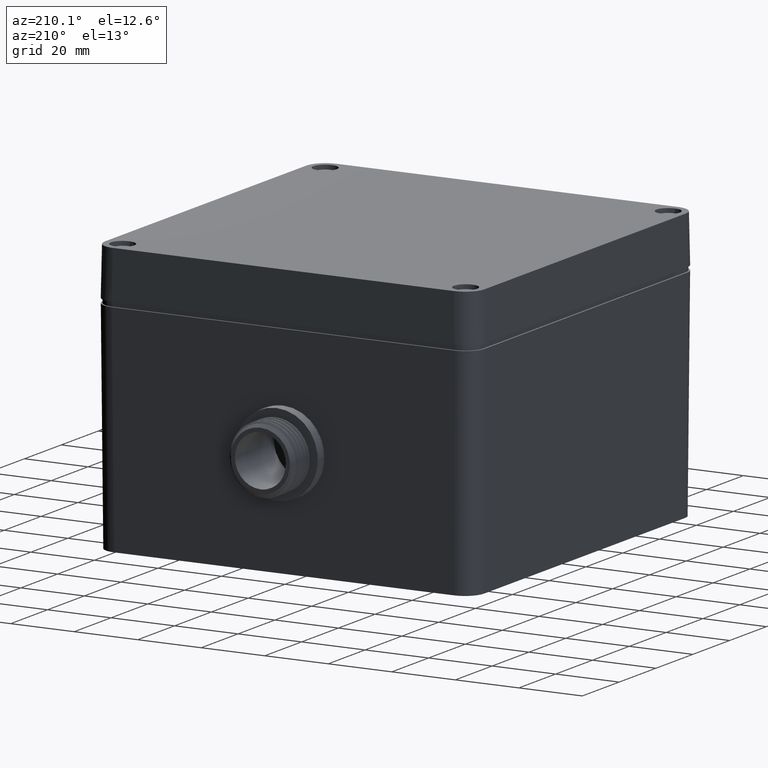
[diagram: clean part render]
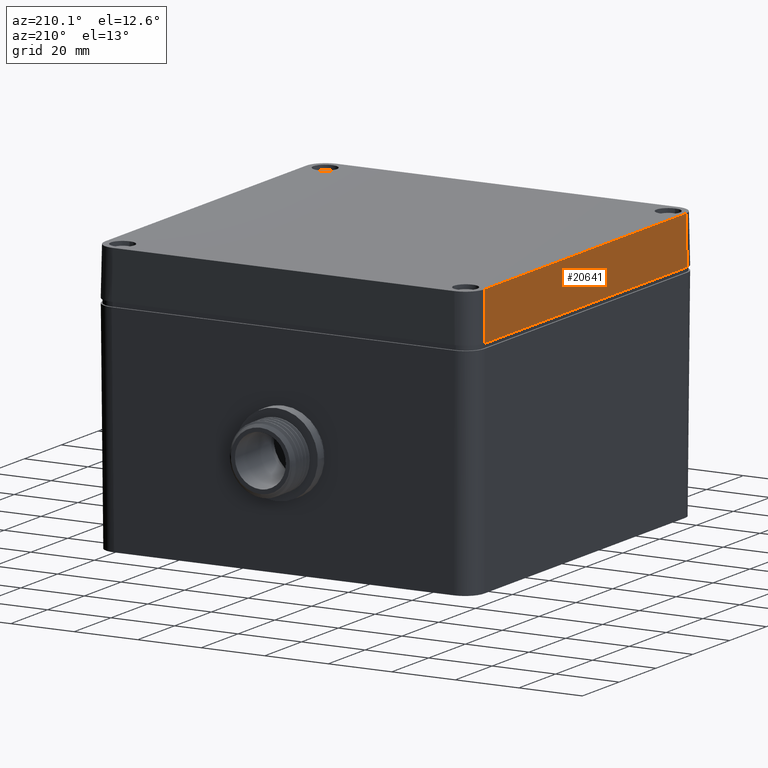
[diagram: same view with one face highlighted and labeled with its STEP entity id]
A machine part, auxiliary view. The second image highlights one B-rep face of the part: STEP entity #20641.
In plain terms, the highlighted planar face has unit normal (-0.9998, 0, 0.0175).
Its self-contained STEP definition (entity closure, byte-faithful):
#223 = VECTOR ( 'NONE', #27407, 39.37007874015748143 ) ;
#375 = CARTESIAN_POINT ( 'NONE',  ( -2.352334638820735346, -2.156097020969982125, 0.5654185664068596129 ) ) ;
#391 = VERTEX_POINT ( 'NONE', #5667 ) ;
#551 = CARTESIAN_POINT ( 'NONE',  ( -2.354542528761458975, -2.157758673636085867, 0.4389667814624469422 ) ) ;
#903 = CARTESIAN_POINT ( 'NONE',  ( -2.352097316377097957, -2.156095025214286309, 0.5789782579452352751 ) ) ;
#1169 = CARTESIAN_POINT ( 'NONE',  ( -2.363235535990704683, -2.598468369876929085, -0.05905515593579724332 ) ) ;
#1172 = VECTOR ( 'NONE', #16758, 39.37007874015748143 ) ;
#1249 = CARTESIAN_POINT ( 'NONE',  ( -2.355649036950147046, -2.158873690254081268, 0.3755748979688536271 ) ) ;
#1390 = CARTESIAN_POINT ( 'NONE',  ( -2.354409011538062924, 2.157585152085956803, 0.4466160819360338596 ) ) ;
#1523 = CARTESIAN_POINT ( 'NONE',  ( -2.357759378019586904, 2.160948580462492163, 0.2546737241136102226 ) ) ;
#1561 = CARTESIAN_POINT ( 'NONE',  ( -2.354442560287043573, 2.157623346525472385, 0.4446940823443842339 ) ) ;
#1866 = CARTESIAN_POINT ( 'NONE',  ( -2.357675594543094721, 2.160866185557570596, 0.2594736736497622043 ) ) ;
#2073 = CARTESIAN_POINT ( 'NONE',  ( -2.354476435663775735, 2.157662213539567109, 0.4427533657138661427 ) ) ;
#2293 = VERTEX_POINT ( 'NONE', #24289 ) ;
#2705 = LINE ( 'NONE', #7789, #3605 ) ;
#3185 = CARTESIAN_POINT ( 'NONE',  ( -2.354263016434294364, -2.157464476320853475, 0.4549801176525264945 ) ) ;
#3362 = CARTESIAN_POINT ( 'NONE',  ( -2.355251278065625176, -2.158480694836822256, 0.3983624414064599328 ) ) ;
#3427 = ORIENTED_EDGE ( 'NONE', *, *, #26568, .F. ) ;
#3450 = DIRECTION ( 'NONE',  ( -0.9998476951563912696, 1.076691621741420312E-16, 0.01745240643728430616 ) ) ;
#3534 = CARTESIAN_POINT ( 'NONE',  ( -2.355635351363866370, -2.158860229121089880, 0.3763589425522728127 ) ) ;
#3605 = VECTOR ( 'NONE', #29178, 39.37007874015748143 ) ;
#3718 = CARTESIAN_POINT ( 'NONE',  ( -2.352576971096604908, -2.156111131202674169, 0.5515589076188801565 ) ) ;
#3923 = CARTESIAN_POINT ( 'NONE',  ( -2.353186300433287137, 2.156371689953322957, 0.5166651635670536091 ) ) ;
#3999 = CARTESIAN_POINT ( 'NONE',  ( -2.357428798480208698, 2.160633458050129629, 0.2736125747066125991 ) ) ;
#4163 = CARTESIAN_POINT ( 'NONE',  ( -2.355455196875220647, 2.158722183474512057, 0.3866792883978055206 ) ) ;
#4192 = CARTESIAN_POINT ( 'NONE',  ( -2.354475438524527675, 2.157660879769964346, 0.4428104917832653697 ) ) ;
#4560 = ORIENTED_EDGE ( 'NONE', *, *, #17825, .T. ) ;
#4756 = CARTESIAN_POINT ( 'NONE',  ( -2.362204724409496137, -2.165390308230775496, 4.004513818151275050E-16 ) ) ;
#5641 = CARTESIAN_POINT ( 'NONE',  ( -2.354549273149972421, -2.157765804650879637, 0.4385803928161851606 ) ) ;
#5667 = CARTESIAN_POINT ( 'NONE',  ( -2.351886621264622335, -2.156095034789724529, 0.5905513414452716603 ) ) ;
#5991 = CARTESIAN_POINT ( 'NONE',  ( -2.354533109442265904, -2.157748716663768107, 0.4395064178610968986 ) ) ;
#6165 = CARTESIAN_POINT ( 'NONE',  ( -2.354546574243741475, -2.157762950911429112, 0.4387350142094521566 ) ) ;
#6684 = CARTESIAN_POINT ( 'NONE',  ( -2.362204724409496137, -2.165390308230775496, 4.004513818151275050E-16 ) ) ;
#7161 = CARTESIAN_POINT ( 'NONE',  ( -2.354214623981945032, 2.157366090440011597, 0.4577524209997103077 ) ) ;
#7373 = VERTEX_POINT ( 'NONE', #4756 ) ;
#7488 = CARTESIAN_POINT ( 'NONE',  ( -2.353555462667090481, 2.156663072275748050, 0.4955150606714827100 ) ) ;
#7789 = CARTESIAN_POINT ( 'NONE',  ( -2.351834889532582906, 2.155020473353854271, 0.5940874422159685420 ) ) ;
#8436 = CARTESIAN_POINT ( 'NONE',  ( -2.353180967396782730, -2.156409278456129286, 0.5169704741877686471 ) ) ;
#8632 = B_SPLINE_CURVE_WITH_KNOTS ( 'NONE', 3,
 ( #32905, #8892, #16785, #19923 ),
 .UNSPECIFIED., .F., .F.,
 ( 4, 4 ),
 ( 0.000000000000000000, 1.000000000000000000 ),
 .UNSPECIFIED. ) ;
#8656 = VERTEX_POINT ( 'NONE', #3923 ) ;
#8892 = CARTESIAN_POINT ( 'NONE',  ( -2.352872417280100326, 2.156192158572715289, 0.5346475173697995409 ) ) ;
#8968 = CARTESIAN_POINT ( 'NONE',  ( -2.353561128811945125, -2.156743095317465109, 0.4951912434378346051 ) ) ;
#9206 = LINE ( 'NONE', #11857, #1172 ) ;
#9426 = CARTESIAN_POINT ( 'NONE',  ( -2.357592569271988125, 2.160788008687590800, 0.2642301806762369920 ) ) ;
#9486 = CARTESIAN_POINT ( 'NONE',  ( -2.355661795993941432, -2.158886236652640012, 0.3748439348471423460 ) ) ;
#9627 = CARTESIAN_POINT ( 'NONE',  ( -2.353305105695303379, 2.156446124588224489, 0.5098588146626811257 ) ) ;
#9971 = CARTESIAN_POINT ( 'NONE',  ( -2.354342900434787555, 2.157510206777086825, 0.4504035584780086698 ) ) ;
#10763 = VERTEX_POINT ( 'NONE', #20582 ) ;
#10895 = CARTESIAN_POINT ( 'NONE',  ( -2.354514351361813862, -2.157728896066400281, 0.4405810752250445828 ) ) ;
#11343 = B_SPLINE_CURVE_WITH_KNOTS ( 'NONE', 3,
 ( #2073, #4192, #25915, #25592, #31508, #1561, #1390, #9971, #7161, #28717, #7488, #9627, #15061 ),
 .UNSPECIFIED., .F., .F.,
 ( 4, 2, 1, 1, 1, 1, 1, 1, 1, 4 ),
 ( 0.7497420450249069335, 0.7502309495431719322, 0.7507198540614369309, 0.7516976630979659291, 0.7536532811710259239, 0.7575645173171450253, 0.7653869896093840053, 0.7810319341938610771, 0.8123218233628159979, 0.8749016017007260615 ),
 .UNSPECIFIED. ) ;
#11618 = CARTESIAN_POINT ( 'NONE',  ( -2.353325043308095221, -2.156522052808196310, 0.5087166222785074465 ) ) ;
#11857 = CARTESIAN_POINT ( 'NONE',  ( -2.362204724409499690, -2.598468369876929085, 3.414809992080326558E-16 ) ) ;
#12038 = FACE_OUTER_BOUND ( 'NONE', #17162, .T. ) ;
#12198 = ORIENTED_EDGE ( 'NONE', *, *, #12890, .F. ) ;
#12233 = CARTESIAN_POINT ( 'NONE',  ( -2.356510009434823250, 2.159756641094913387, 0.3262495783038110164 ) ) ;
#12475 = B_SPLINE_CURVE_WITH_KNOTS ( 'NONE', 3,
 ( #28187, #23263, #19952, #20627, #33777, #20463, #1866, #9426, #3999, #30821, #12233, #4163, #14867, #31153 ),
 .UNSPECIFIED., .F., .F.,
 ( 4, 2, 1, 1, 1, 1, 1, 1, 1, 1, 4 ),
 ( 0.4312552481489749789, 0.4318772926741235030, 0.4324993371992714719, 0.4337434262495684645, 0.4362316043501615059, 0.4412079605513485325, 0.4511606729537209759, 0.4710660977584670284, 0.5108769473679579676, 0.5904986465869410672, 0.7497420450249069335 ),
 .UNSPECIFIED. ) ;
#12657 = EDGE_CURVE ( 'NONE', #8656, #30533, #8632, .T. ) ;
#12890 = EDGE_CURVE ( 'NONE', #10763, #16469, #2705, .T. ) ;
#13887 = CARTESIAN_POINT ( 'NONE',  ( -2.353226956932645386, -2.156444726987643445, 0.5143358287087035352 ) ) ;
#14067 = CARTESIAN_POINT ( 'NONE',  ( -2.355449735733118999, -2.158677260289476596, 0.3869928289607488803 ) ) ;
#14152 = DIRECTION ( 'NONE',  ( 1.076855632070051881E-16, 1.000000000000000000, 0.000000000000000000 ) ) ;
#14241 = CARTESIAN_POINT ( 'NONE',  ( -2.352576141733977000, -2.156110962077045112, 0.5516063660349944664 ) ) ;
#14421 = CARTESIAN_POINT ( 'NONE',  ( -2.353033918673061997, -2.156305534795305956, 0.5253942836178339126 ) ) ;
#14587 = CARTESIAN_POINT ( 'NONE',  ( -2.355661275393668319, -2.158885724813605744, 0.3748737599343218707 ) ) ;
#14867 = CARTESIAN_POINT ( 'NONE',  ( -2.354801240639432969, 2.158033331619531481, 0.4241453011187913402 ) ) ;
#15061 = CARTESIAN_POINT ( 'NONE',  ( -2.353186300433287137, 2.156371689953322957, 0.5166651635670536091 ) ) ;
#16054 = EDGE_CURVE ( 'NONE', #2293, #8656, #11343, .T. ) ;
#16328 = CARTESIAN_POINT ( 'NONE',  ( -2.354898121156230761, -2.158127697638642317, 0.4185947844031844833 ) ) ;
#16469 = VERTEX_POINT ( 'NONE', #1523 ) ;
#16501 = CARTESIAN_POINT ( 'NONE',  ( -2.353223411630533946, -2.156441946444813240, 0.5145389328922036487 ) ) ;
#16514 = CARTESIAN_POINT ( 'NONE',  ( -2.351886699073732157, 2.156089557629866427, 0.5905513565258878605 ) ) ;
#16687 = CARTESIAN_POINT ( 'NONE',  ( -2.354670429792584230, -2.157893929252440390, 0.4316392808686154714 ) ) ;
#16714 = CARTESIAN_POINT ( 'NONE',  ( -2.351896615199921214, 2.869518138128106521, 0.5905511811023621549 ) ) ;
#16758 = DIRECTION ( 'NONE',  ( -1.076527636392356008E-16, -1.000000000000000000, 1.879085979025004911E-18 ) ) ;
#16785 = CARTESIAN_POINT ( 'NONE',  ( -2.352442664022391217, 2.156098063601153747, 0.5592763076392686106 ) ) ;
#17162 = EDGE_LOOP ( 'NONE', ( #12198, #4560, #3427, #30724, #25775, #33659, #28072 ) ) ;
#17541 = CARTESIAN_POINT ( 'NONE',  ( -2.355659338530932345, -2.158883820397763831, 0.3749847224202925156 ) ) ;
#17825 = EDGE_CURVE ( 'NONE', #10763, #7373, #9206, .T. ) ;
#18966 = CARTESIAN_POINT ( 'NONE',  ( -2.351886621264622335, -2.156095034789724529, 0.5905513414452716603 ) ) ;
#19494 = CARTESIAN_POINT ( 'NONE',  ( -2.352841488031200523, -2.156192830671398664, 0.5364166359889012137 ) ) ;
#19668 = CARTESIAN_POINT ( 'NONE',  ( -2.352574865250083302, -2.156110709395624436, 0.5516794092006835903 ) ) ;
#19923 = CARTESIAN_POINT ( 'NONE',  ( -2.351886699073732157, 2.156089557629866427, 0.5905513565258878605 ) ) ;
#19952 = CARTESIAN_POINT ( 'NONE',  ( -2.357753369622665574, 2.160939316344649530, 0.2550179449307964918 ) ) ;
#20010 = CARTESIAN_POINT ( 'NONE',  ( -2.359383644190283569, -2.162569228011565592, 0.1616195775157129033 ) ) ;
#20342 = CARTESIAN_POINT ( 'NONE',  ( -2.355655901109615868, -2.158880440417113356, 0.3751816516137173041 ) ) ;
#20463 = CARTESIAN_POINT ( 'NONE',  ( -2.357717392144314861, 2.160905499380370465, 0.2570790926336484206 ) ) ;
#20582 = CARTESIAN_POINT ( 'NONE',  ( -2.362204724409499690, 2.165390308230775496, 3.787349016415928688E-16 ) ) ;
#20627 = CARTESIAN_POINT ( 'NONE',  ( -2.357747364612527541, 2.160933673252366294, 0.2553619716834449327 ) ) ;
#20641 = ADVANCED_FACE ( 'NONE', ( #12038 ), #22215, .T. ) ;
#21943 = CARTESIAN_POINT ( 'NONE',  ( -2.352494985105203718, -2.156102958157831040, 0.5562491824439723676 ) ) ;
#22115 = CARTESIAN_POINT ( 'NONE',  ( -2.353229765390300710, -2.156446937496061977, 0.5141749368852879254 ) ) ;
#22215 = PLANE ( 'NONE',  #30819 ) ;
#22849 = LINE ( 'NONE', #16714, #223 ) ;
#23263 = CARTESIAN_POINT ( 'NONE',  ( -2.357757825370244031, 2.160943503051141690, 0.2547626753348681272 ) ) ;
#23356 = B_SPLINE_CURVE_WITH_KNOTS ( 'NONE', 3,
 ( #18966, #903, #375, #21943, #24930, #30016, #27743, #19668, #14241, #3718, #29656, #32981, #19494, #14421, #24393, #8436, #24571, #32454, #16501, #13887, #22115, #11618, #8968, #27015, #3185, #30373, #27379, #10895, #5991, #551, #6165, #5641, #27565, #16687, #16328, #3362, #14067, #24752, #32806, #3534, #1249, #20342, #17541, #28239, #9486, #14587, #30876, #20010, #6684 ),
 .UNSPECIFIED., .F., .F.,
 ( 4, 1, 1, 1, 1, 1, 1, 2, 2, 1, 1, 1, 1, 1, 1, 2, 2, 1, 1, 1, 1, 1, 1, 1, 1, 2, 2, 1, 1, 1, 1, 1, 1, 1, 1, 1, 2, 2, 4 ),
 ( 0.000000000000000000, 0.06249999999992802979, 0.09374999999989171162, 0.1093749999998735317, 0.1171874999998644140, 0.1210937499998587796, 0.1230468749998571698, 0.1240234374998577249, 0.1249999999998582800, 0.1874999999998774036, 0.2187499999998872569, 0.2343749999998925304, 0.2421874999998948341, 0.2460937499998959721, 0.2480468749998965272, 0.2490234374998968325, 0.2499999999998970823, 0.3749999999997621347, 0.4374999999996946332, 0.4687499999996606048, 0.4843749999996433964, 0.4921874999996345701, 0.4960937499996301292, 0.4980468749996281863, 0.4990234374996271316, 0.4995117187496265765, 0.4999999999996260769, 0.6249999999996493916, 0.6874999999996606048, 0.7187499999996662670, 0.7343749999996690425, 0.7421874999996704858, 0.7460937499996715960, 0.7480468749996723732, 0.7490234374996731503, 0.7495117187496731503, 0.7497558593746734834, 0.7499999999996737055, 1.000000000000000000 ),
 .UNSPECIFIED. ) ;
#24289 = CARTESIAN_POINT ( 'NONE',  ( -2.354476435663775735, 2.157662213539567109, 0.4427533657138661427 ) ) ;
#24393 = CARTESIAN_POINT ( 'NONE',  ( -2.353131691109987322, -2.156372867181451269, 0.5197933673376988750 ) ) ;
#24571 = CARTESIAN_POINT ( 'NONE',  ( -2.353205703140235361, -2.156428170363902108, 0.5155534188617867386 ) ) ;
#24752 = CARTESIAN_POINT ( 'NONE',  ( -2.355554434361112559, -2.158780559729194248, 0.3809946625009001941 ) ) ;
#24930 = CARTESIAN_POINT ( 'NONE',  ( -2.352546067676299035, -2.156106828985959289, 0.5533270552358370287 ) ) ;
#25592 = CARTESIAN_POINT ( 'NONE',  ( -2.354466726237319119, 2.157650924715429408, 0.4433096181649882062 ) ) ;
#25775 = ORIENTED_EDGE ( 'NONE', *, *, #12657, .F. ) ;
#25915 = CARTESIAN_POINT ( 'NONE',  ( -2.354471577628023837, 2.157656466990724553, 0.4430316823517874147 ) ) ;
#26568 = EDGE_CURVE ( 'NONE', #391, #7373, #23356, .T. ) ;
#27015 = CARTESIAN_POINT ( 'NONE',  ( -2.354001555614784191, -2.157192153451943373, 0.4699592274781038692 ) ) ;
#27379 = CARTESIAN_POINT ( 'NONE',  ( -2.354477157433242596, -2.157689628260738512, 0.4427119282195403627 ) ) ;
#27407 = DIRECTION ( 'NONE',  ( -1.076855632070051881E-16, -1.000000000000000000, -1.513658771444309984E-32 ) ) ;
#27565 = CARTESIAN_POINT ( 'NONE',  ( -2.354551512218975073, -2.157768172397877215, 0.4384521156708463541 ) ) ;
#27743 = CARTESIAN_POINT ( 'NONE',  ( -2.352571659704963736, -2.156110126854811959, 0.5518628320445284619 ) ) ;
#28072 = ORIENTED_EDGE ( 'NONE', *, *, #32192, .F. ) ;
#28187 = CARTESIAN_POINT ( 'NONE',  ( -2.357759378019586904, 2.160948580462492163, 0.2546737241136102226 ) ) ;
#28239 = CARTESIAN_POINT ( 'NONE',  ( -2.355660812856121389, -2.158885270010713953, 0.3749002586197126008 ) ) ;
#28717 = CARTESIAN_POINT ( 'NONE',  ( -2.353973855339220655, 2.157100954888617750, 0.4715457838159134440 ) ) ;
#29178 = DIRECTION ( 'NONE',  ( 0.01744974916068475768, -0.01744974916068490686, 0.9996954598818874604 ) ) ;
#29656 = CARTESIAN_POINT ( 'NONE',  ( -2.352576141566832479, -2.156110948638142677, 0.5516063769148419338 ) ) ;
#30016 = CARTESIAN_POINT ( 'NONE',  ( -2.352564340257077724, -2.156108989969820922, 0.5522816328940309827 ) ) ;
#30373 = CARTESIAN_POINT ( 'NONE',  ( -2.354404058510033426, -2.157612586205714056, 0.4468997872750182787 ) ) ;
#30533 = VERTEX_POINT ( 'NONE', #16514 ) ;
#30724 = ORIENTED_EDGE ( 'NONE', *, *, #32493, .F. ) ;
#30819 = AXIS2_PLACEMENT_3D ( 'NONE', #1169, #3450, #14152 ) ;
#30821 = CARTESIAN_POINT ( 'NONE',  ( -2.357110376088932924, 2.160331569185149903, 0.2918548826803952778 ) ) ;
#30876 = CARTESIAN_POINT ( 'NONE',  ( -2.357202998018991913, -2.160401526483041845, 0.2865487739582817106 ) ) ;
#31153 = CARTESIAN_POINT ( 'NONE',  ( -2.354476435663775735, 2.157662213539567109, 0.4427533657138661427 ) ) ;
#31508 = CARTESIAN_POINT ( 'NONE',  ( -2.354459457957988278, 2.157642624191499880, 0.4437260172183433160 ) ) ;
#32192 = EDGE_CURVE ( 'NONE', #16469, #2293, #12475, .T. ) ;
#32454 = CARTESIAN_POINT ( 'NONE',  ( -2.353218095421365064, -2.156437787885396862, 0.5148434890112052464 ) ) ;
#32493 = EDGE_CURVE ( 'NONE', #30533, #391, #22849, .T. ) ;
#32806 = CARTESIAN_POINT ( 'NONE',  ( -2.355608151121970195, -2.158833463627399585, 0.3779172392116978418 ) ) ;
#32905 = CARTESIAN_POINT ( 'NONE',  ( -2.353186300433287137, 2.156371689953322957, 0.5166651635670536091 ) ) ;
#32981 = CARTESIAN_POINT ( 'NONE',  ( -2.352681860985040618, -2.156133873955247360, 0.5455566858286923226 ) ) ;
#33659 = ORIENTED_EDGE ( 'NONE', *, *, #16054, .F. ) ;
#33777 = CARTESIAN_POINT ( 'NONE',  ( -2.357738362185940684, 2.160925212638724169, 0.2558777202498653813 ) ) ;